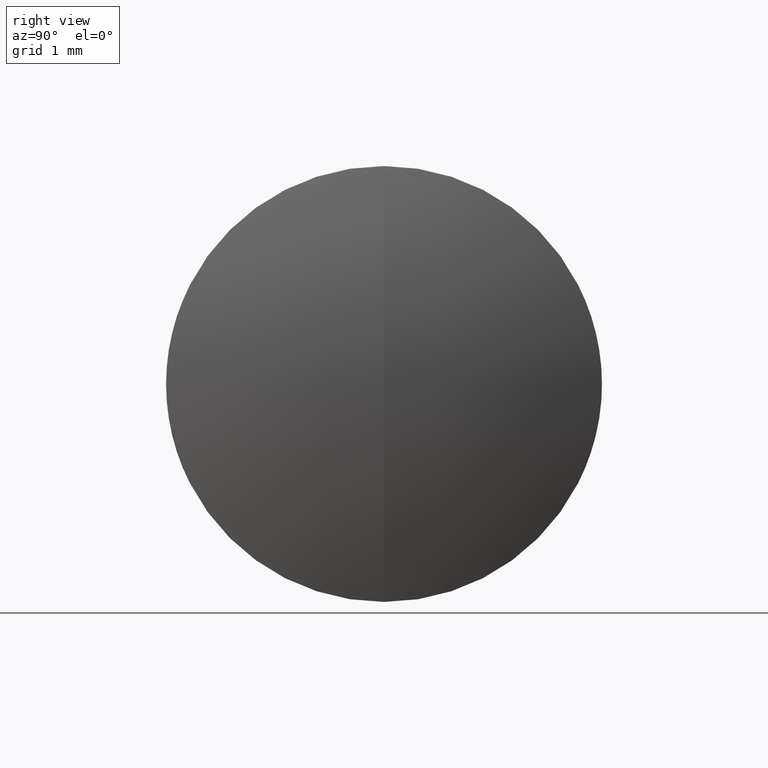
[diagram: clean part render]
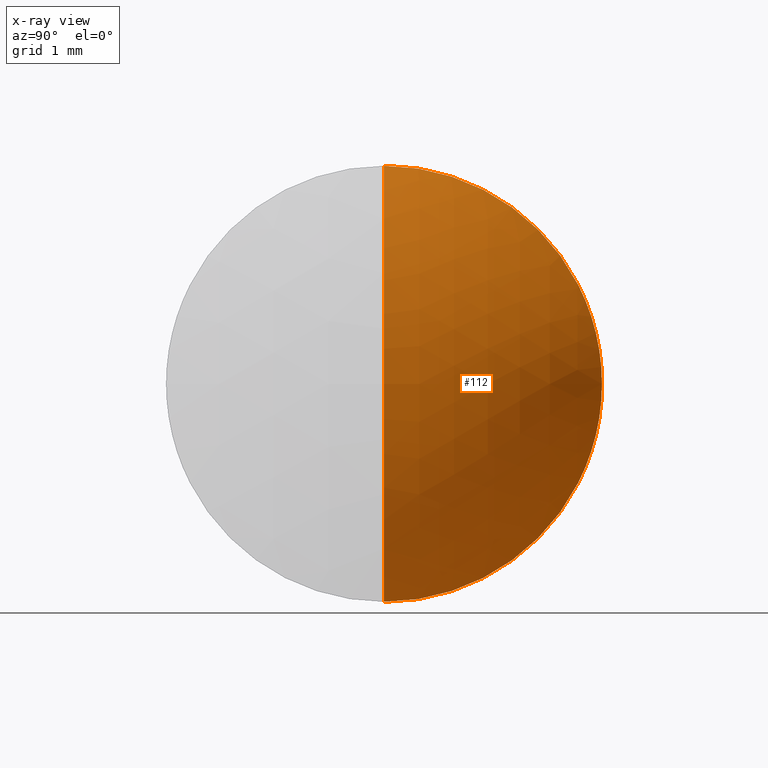
[diagram: x-ray — body ghosted, one internal face saturated and labeled with its STEP entity id]
A machine part, right view, then the same camera in x-ray: the body is ghosted and one INTERNAL B-rep face — a face not visible from any outside direction — is saturated and labeled: STEP entity #112.
In plain terms, the highlighted spherical surface has radius 4.146 mm.
Its self-contained STEP definition (entity closure, byte-faithful):
#4 = CIRCLE ( 'NONE', #36, 4.146000000000013200 ) ;
#5 = DIRECTION ( 'NONE',  ( 0.0000000000000000000, 0.0000000000000000000, 1.000000000000000000 ) ) ;
#28 = CARTESIAN_POINT ( 'NONE',  ( 3.790307587695710600, 0.0000000000000000000, 0.0000000000000000000 ) ) ;
#34 = VERTEX_POINT ( 'NONE', #313 ) ;
#36 = AXIS2_PLACEMENT_3D ( 'NONE', #78, #274, #105 ) ;
#37 = CARTESIAN_POINT ( 'NONE',  ( 3.790307587695710600, 0.0000000000000000000, 3.149999999999999900 ) ) ;
#43 = DIRECTION ( 'NONE',  ( 0.0000000000000000000, 1.000000000000000000, 0.0000000000000000000 ) ) ;
#61 = VERTEX_POINT ( 'NONE', #37 ) ;
#68 = EDGE_LOOP ( 'NONE', ( #168, #312, #79 ) ) ;
#77 = AXIS2_PLACEMENT_3D ( 'NONE', #249, #81, #276 ) ;
#78 = CARTESIAN_POINT ( 'NONE',  ( 1.094604339932686600, 0.0000000000000000000, -3.388131789017201400E-018 ) ) ;
#79 = ORIENTED_EDGE ( 'NONE', *, *, #292, .F. ) ;
#81 = DIRECTION ( 'NONE',  ( 0.0000000000000000000, -1.000000000000000000, 0.0000000000000000000 ) ) ;
#102 = DIRECTION ( 'NONE',  ( 0.0000000000000000000, 0.0000000000000000000, 1.000000000000000000 ) ) ;
#105 = DIRECTION ( 'NONE',  ( 0.0000000000000000000, -1.224646799147353000E-016, 1.000000000000000000 ) ) ;
#112 = ADVANCED_FACE ( 'NONE', ( #228 ), #153, .T. ) ;
#121 = AXIS2_PLACEMENT_3D ( 'NONE', #28, #188, #5 ) ;
#130 = CARTESIAN_POINT ( 'NONE',  ( 1.094604339932686600, 0.0000000000000000000, -3.388131789017201400E-018 ) ) ;
#153 = SPHERICAL_SURFACE ( 'NONE', #288, 4.146000000000013200 ) ;
#168 = ORIENTED_EDGE ( 'NONE', *, *, #191, .F. ) ;
#169 = EDGE_CURVE ( 'NONE', #227, #34, #4, .T. ) ;
#188 = DIRECTION ( 'NONE',  ( -1.000000000000000000, -0.0000000000000000000, -0.0000000000000000000 ) ) ;
#191 = EDGE_CURVE ( 'NONE', #227, #61, #281, .T. ) ;
#227 = VERTEX_POINT ( 'NONE', #332 ) ;
#228 = FACE_OUTER_BOUND ( 'NONE', #68, .T. ) ;
#249 = CARTESIAN_POINT ( 'NONE',  ( 1.094604339932686600, 0.0000000000000000000, -3.388131789017201400E-018 ) ) ;
#255 = CIRCLE ( 'NONE', #121, 3.149999999999999900 ) ;
#274 = DIRECTION ( 'NONE',  ( -0.0000000000000000000, 1.000000000000000000, 1.224646799147353200E-016 ) ) ;
#276 = DIRECTION ( 'NONE',  ( 0.0000000000000000000, 0.0000000000000000000, -1.000000000000000000 ) ) ;
#281 = CIRCLE ( 'NONE', #77, 4.146000000000013200 ) ;
#288 = AXIS2_PLACEMENT_3D ( 'NONE', #130, #43, #102 ) ;
#292 = EDGE_CURVE ( 'NONE', #61, #34, #255, .T. ) ;
#312 = ORIENTED_EDGE ( 'NONE', *, *, #169, .T. ) ;
#313 = CARTESIAN_POINT ( 'NONE',  ( 3.790307587695710600, 3.857637417314162700E-016, -3.149999999999999900 ) ) ;
#332 = CARTESIAN_POINT ( 'NONE',  ( 5.240604339932699100, 0.0000000000000000000, 2.504811496742299000E-016 ) ) ;